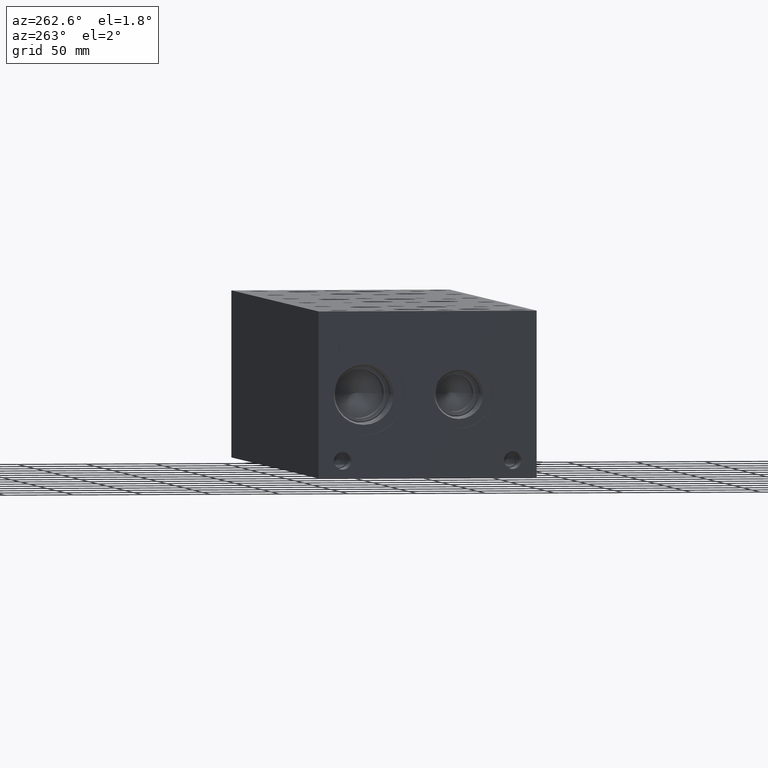
[diagram: clean part render]
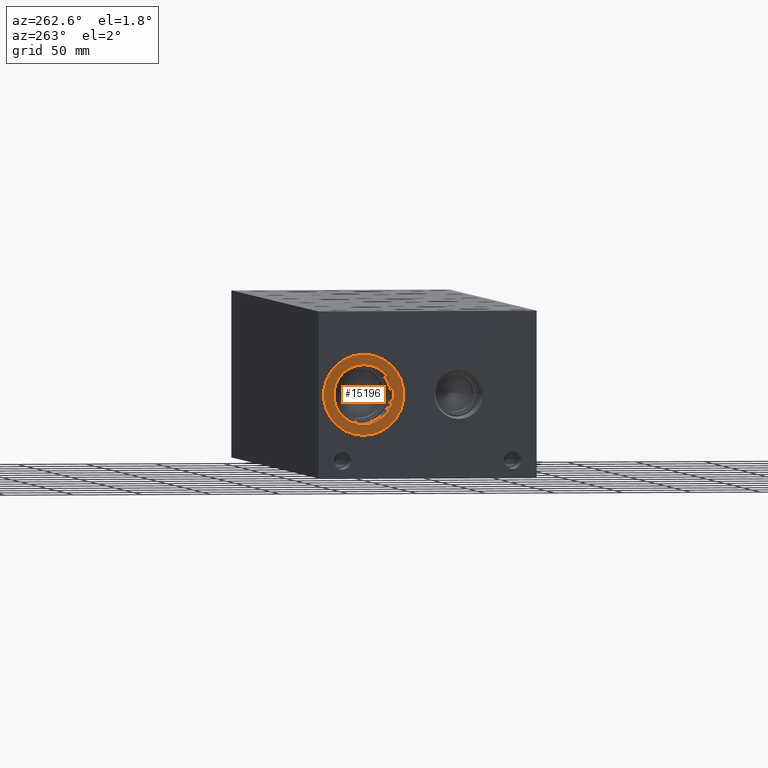
[diagram: same view with one face highlighted and labeled with its STEP entity id]
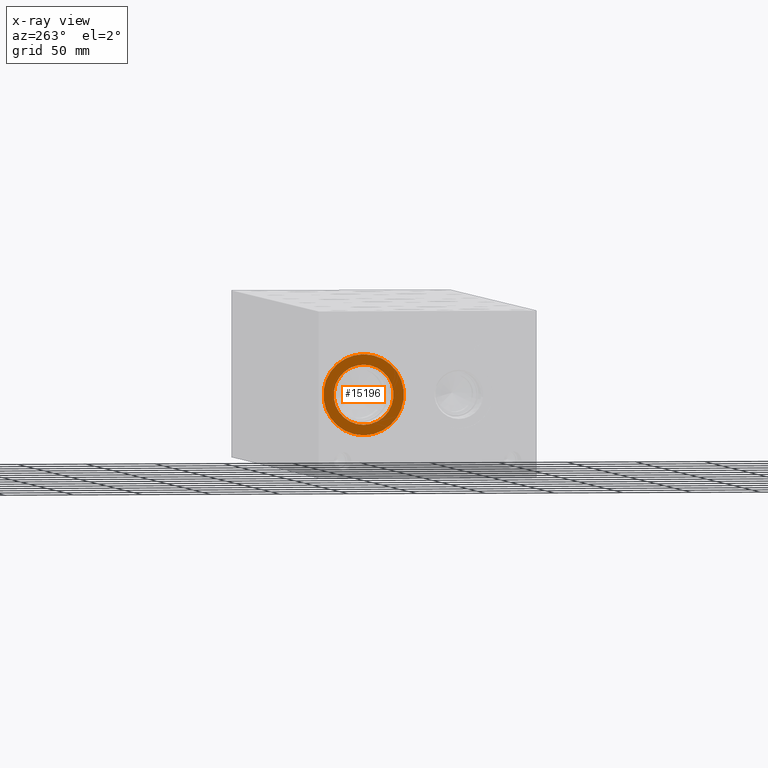
[diagram: x-ray of the same camera — body ghosted, the highlighted face saturated]
A machine part, auxiliary view. The second image highlights one B-rep face of the part: STEP entity #15196.
The next image is the same camera in x-ray: the body ghosted, the highlighted face saturated — about 0% of this face is hidden behind the body in this view.
In plain terms, the highlighted planar face has unit normal (1, 0, 0).
Its self-contained STEP definition (entity closure, byte-faithful):
#362=CIRCLE('',#15960,29.2862);
#363=CIRCLE('',#15961,29.2862);
#364=CIRCLE('',#15963,21.7551);
#365=CIRCLE('',#15964,21.7551);
#805=FACE_BOUND('',#2754,.T.);
#1240=PLANE('',#15962);
#1864=FACE_OUTER_BOUND('',#2753,.T.);
#2753=EDGE_LOOP('',(#12786,#12787));
#2754=EDGE_LOOP('',(#12788,#12789));
#7104=VERTEX_POINT('',#25602);
#7105=VERTEX_POINT('',#25604);
#7106=VERTEX_POINT('',#25608);
#7107=VERTEX_POINT('',#25609);
#9103=EDGE_CURVE('',#7104,#7105,#362,.T.);
#9104=EDGE_CURVE('',#7105,#7104,#363,.T.);
#9105=EDGE_CURVE('',#7106,#7107,#364,.T.);
#9106=EDGE_CURVE('',#7107,#7106,#365,.T.);
#12786=ORIENTED_EDGE('',*,*,#9104,.F.);
#12787=ORIENTED_EDGE('',*,*,#9103,.F.);
#12788=ORIENTED_EDGE('',*,*,#9105,.T.);
#12789=ORIENTED_EDGE('',*,*,#9106,.T.);
#15196=ADVANCED_FACE('',(#1864,#805),#1240,.F.);
#15960=AXIS2_PLACEMENT_3D('',#25605,#18725,#18726);
#15961=AXIS2_PLACEMENT_3D('',#25606,#18727,#18728);
#15962=AXIS2_PLACEMENT_3D('',#25607,#18729,#18730);
#15963=AXIS2_PLACEMENT_3D('',#25610,#18731,#18732);
#15964=AXIS2_PLACEMENT_3D('',#25611,#18733,#18734);
#18725=DIRECTION('center_axis',(1.,0.,0.));
#18726=DIRECTION('ref_axis',(0.,0.,-1.));
#18727=DIRECTION('center_axis',(1.,0.,0.));
#18728=DIRECTION('ref_axis',(0.,0.,-1.));
#18729=DIRECTION('center_axis',(1.,0.,0.));
#18730=DIRECTION('ref_axis',(0.,0.,-1.));
#18731=DIRECTION('center_axis',(1.,0.,0.));
#18732=DIRECTION('ref_axis',(0.,0.,-1.));
#18733=DIRECTION('center_axis',(1.,0.,0.));
#18734=DIRECTION('ref_axis',(0.,0.,-1.));
#25602=CARTESIAN_POINT('',(0.7874,125.8316,31.0388));
#25604=CARTESIAN_POINT('',(0.7874,125.8316,89.6112));
#25605=CARTESIAN_POINT('Origin',(0.7874,125.8316,60.325));
#25606=CARTESIAN_POINT('Origin',(0.7874,125.8316,60.325));
#25607=CARTESIAN_POINT('Origin',(0.7874,125.8316,82.0801));
#25608=CARTESIAN_POINT('',(0.7874,125.8316,82.0801));
#25609=CARTESIAN_POINT('',(0.7874,125.8316,38.5699));
#25610=CARTESIAN_POINT('Origin',(0.7874,125.8316,60.325));
#25611=CARTESIAN_POINT('Origin',(0.7874,125.8316,60.325));